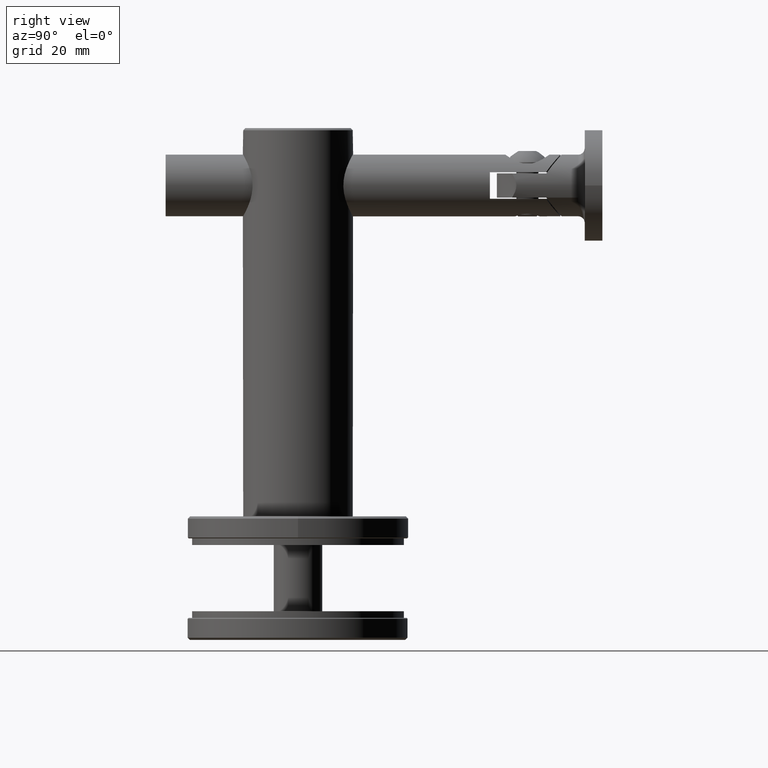
[diagram: clean part render]
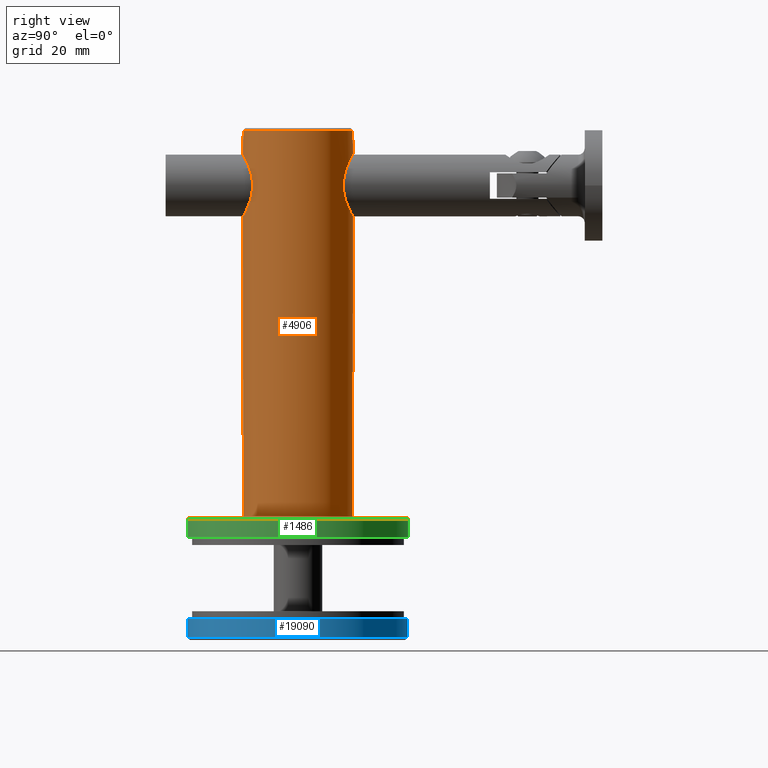
[diagram: same view with three faces highlighted in distinct colors, each labeled with its STEP entity id]
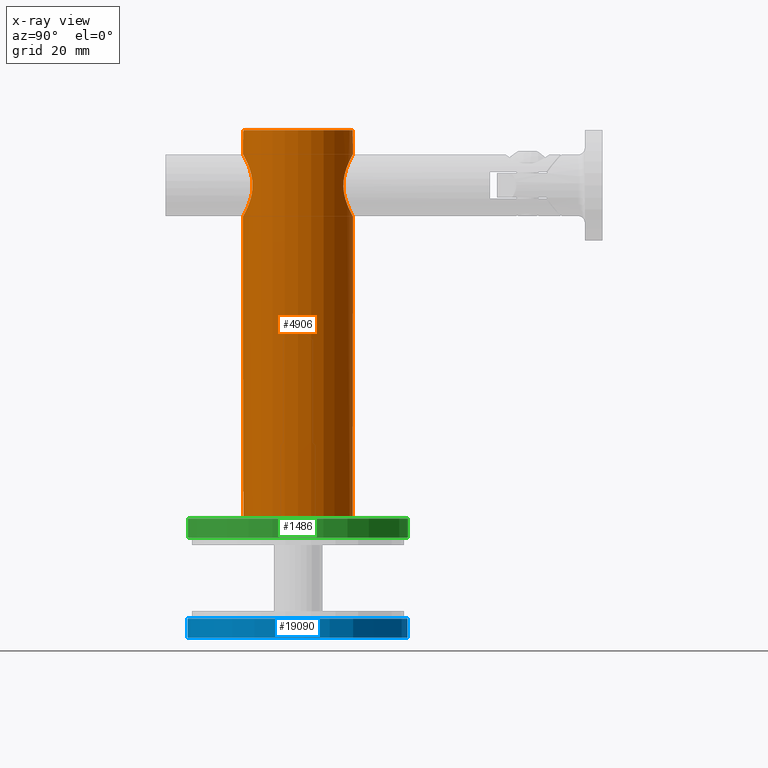
[diagram: x-ray of the same camera — body ghosted, the three highlighted faces saturated]
A machine part, right view with three faces highlighted in distinct colors.
The next image is the same camera in x-ray (body ghosted, the three faces saturated) — at least one of them is partly hidden behind the body in this view.
Their STEP definitions:

[orange] entity #4906 — the highlighted cylindrical surface (bore or boss wall) has radius 12.5 mm, axis along (0, 0, -1).
#10 = CARTESIAN_POINT ( 'NONE',  ( 3.575190798629522600, -11.98464729610662800, 73.84842911643905000 ) ) ;
#169 = CARTESIAN_POINT ( 'NONE',  ( -12.25776322044042400, 2.449810243984445800, 79.19102811394681400 ) ) ;
#293 = DIRECTION ( 'NONE',  ( 0.0000000000000000000, 0.0000000000000000000, 1.000000000000000000 ) ) ;
#314 = CARTESIAN_POINT ( 'NONE',  ( -12.41742158304677800, 1.434448057227614400, 82.08669042954309700 ) ) ;
#379 = DIRECTION ( 'NONE',  ( 0.0000000000000000000, 0.0000000000000000000, -1.000000000000000000 ) ) ;
#386 = CARTESIAN_POINT ( 'NONE',  ( -12.50000000000000000, -3.061616997868382300E-015, 82.50970509121609100 ) ) ;
#444 = DIRECTION ( 'NONE',  ( 1.000000000000000000, 0.0000000000000000000, 0.0000000000000000000 ) ) ;
#938 = CARTESIAN_POINT ( 'NONE',  ( 3.588686174087187400, 11.98054828353597000, 86.14357688401587200 ) ) ;
#942 = CYLINDRICAL_SURFACE ( 'NONE', #3262, 12.50000000000000000 ) ;
#981 = CARTESIAN_POINT ( 'NONE',  ( -5.175251503206549600, 11.37969477022133100, 75.13398084494915000 ) ) ;
#1053 = CARTESIAN_POINT ( 'NONE',  ( -6.639358407684963700, 10.59150144861526100, 82.52634640713076000 ) ) ;
#1110 = CARTESIAN_POINT ( 'NONE',  ( -12.50000000000000000, -0.1698553404806654500, 82.50970459479894700 ) ) ;
#1121 = CARTESIAN_POINT ( 'NONE',  ( 3.605539113816680400, 11.97534002329462400, 73.86663764570010900 ) ) ;
#1240 = CARTESIAN_POINT ( 'NONE',  ( -5.183621414992732200, -11.37587540671378200, 84.85708113046858600 ) ) ;
#1257 = CARTESIAN_POINT ( 'NONE',  ( -12.29563780309713300, -2.254923467992178100, 81.26551305619401000 ) ) ;
#1269 = CARTESIAN_POINT ( 'NONE',  ( 6.868284871124011200, 10.44457344749546500, 78.14038418871585600 ) ) ;
#1306 = CARTESIAN_POINT ( 'NONE',  ( -0.9502310381377858700, -12.47246097537638400, 87.05182805586086700 ) ) ;
#1378 = CARTESIAN_POINT ( 'NONE',  ( 6.143396690811446300, -10.88689843328965900, 83.56675204116636700 ) ) ;
#1394 = CARTESIAN_POINT ( 'NONE',  ( -12.23046837691340200, -2.581790712145600100, 80.00150123447871000 ) ) ;
#1444 = CARTESIAN_POINT ( 'NONE',  ( 6.460839592141696600, -10.70133331722410500, 82.95314374847106400 ) ) ;
#1459 = FACE_OUTER_BOUND ( 'NONE', #16728, .T. ) ;
#1462 = CARTESIAN_POINT ( 'NONE',  ( -12.48300670525219900, 0.6722641213761312300, 77.57132909091399100 ) ) ;
#1501 = CARTESIAN_POINT ( 'NONE',  ( 0.0000000000000000000, -12.49999999999999500, 87.09999999999999400 ) ) ;
#1514 = CARTESIAN_POINT ( 'NONE',  ( 7.101124007438881900, -10.28708120721371700, 80.46248176011640400 ) ) ;
#1594 = CARTESIAN_POINT ( 'NONE',  ( 6.360965238899708200, 10.76253835036409800, 83.18740120694651800 ) ) ;
#1599 = CARTESIAN_POINT ( 'NONE',  ( -12.48292985430368600, -0.6741327792177097500, 77.57170031767452700 ) ) ;
#1655 = CARTESIAN_POINT ( 'NONE',  ( 1.880117477014193300, -12.35990056820642600, 86.85058647304826700 ) ) ;
#1660 = ORIENTED_EDGE ( 'NONE', *, *, #14184, .T. ) ;
#1814 = CARTESIAN_POINT ( 'NONE',  ( -12.29817642840795400, 2.239177090557027800, 81.26002018840563300 ) ) ;
#1935 = CARTESIAN_POINT ( 'NONE',  ( 0.0000000000000000000, 0.0000000000000000000, 5.000000000000004400 ) ) ;
#1953 = CARTESIAN_POINT ( 'NONE',  ( -12.23401056673671600, 2.565178420134417900, 79.67113078207114500 ) ) ;
#2095 = CARTESIAN_POINT ( 'NONE',  ( -12.24777739071416100, 2.498620391668170600, 79.34686524170126600 ) ) ;
#2184 = VERTEX_POINT ( 'NONE', #10904 ) ;
#2612 = CARTESIAN_POINT ( 'NONE',  ( -2.310420913900503900, 12.29250456500398600, 73.27031743588234700 ) ) ;
#2682 = CARTESIAN_POINT ( 'NONE',  ( 0.9736099433189137100, 12.47060447504791500, 72.95144489749591800 ) ) ;
#2729 = CARTESIAN_POINT ( 'NONE',  ( -5.355958186748809500, -11.29981148896228900, 75.31711136074473200 ) ) ;
#2746 = CARTESIAN_POINT ( 'NONE',  ( -12.47308385892750200, -0.8345888587190610800, 82.38059582327395000 ) ) ;
#2756 = CARTESIAN_POINT ( 'NONE',  ( -3.169272846726296500, 12.09956292198342500, 73.62956972911710800 ) ) ;
#2829 = CARTESIAN_POINT ( 'NONE',  ( 2.561768883189979200, 12.23664740688127500, 73.37418452748443100 ) ) ;
#2895 = CARTESIAN_POINT ( 'NONE',  ( 6.144291566700926100, 10.88638881761785400, 76.43483257053731000 ) ) ;
#2936 = CARTESIAN_POINT ( 'NONE',  ( -5.335835450798519700, -11.30507663162559200, 84.68941556034548100 ) ) ;
#2952 = CARTESIAN_POINT ( 'NONE',  ( -12.48982258640161200, -0.5043131568898000500, 82.46135978384009500 ) ) ;
#3003 = CARTESIAN_POINT ( 'NONE',  ( 5.354227270072694700, -11.30066879763864500, 84.68499769419686600 ) ) ;
#3016 = CARTESIAN_POINT ( 'NONE',  ( -12.24769068202353300, -2.499040709645794900, 79.34873603921143100 ) ) ;
#3070 = CARTESIAN_POINT ( 'NONE',  ( 7.054202409483235800, -10.31991815754176800, 80.93325709459465100 ) ) ;
#3085 = CARTESIAN_POINT ( 'NONE',  ( -12.31433411284287900, -2.146433170931300300, 78.60532221454907600 ) ) ;
#3140 = CARTESIAN_POINT ( 'NONE',  ( 7.001530568193297600, -10.35528030401141400, 78.79837147415904000 ) ) ;
#3213 = CARTESIAN_POINT ( 'NONE',  ( 6.856596184691691900, -10.45197745669437200, 81.85805003137291200 ) ) ;
#3231 = CARTESIAN_POINT ( 'NONE',  ( -12.47321102047029800, 0.8329561184921378000, 77.61876034139868400 ) ) ;
#3262 = AXIS2_PLACEMENT_3D ( 'NONE', #19716, #379, #18086 ) ;
#3286 = CARTESIAN_POINT ( 'NONE',  ( 1.853286471380416900, -12.37060092623069200, 73.12994769052775700 ) ) ;
#3305 = CARTESIAN_POINT ( 'NONE',  ( -12.34833964361937600, -1.944999238366209800, 78.34145907401415300 ) ) ;
#3329 = CARTESIAN_POINT ( 'NONE',  ( 6.860853880118836100, 10.44947904693423300, 81.88678518319302700 ) ) ;
#3443 = CARTESIAN_POINT ( 'NONE',  ( -12.38358244671581500, 1.706301180119997400, 81.89062154024748000 ) ) ;
#3722 = CARTESIAN_POINT ( 'NONE',  ( -12.24537138849704100, 2.513600284225936000, 80.65991892068322500 ) ) ;
#3835 = EDGE_LOOP ( 'NONE', ( #13930 ) ) ;
#4230 = CARTESIAN_POINT ( 'NONE',  ( -7.101124007438878400, 10.28708120721371300, 80.46248176011639000 ) ) ;
#4276 = CARTESIAN_POINT ( 'NONE',  ( -4.360704997454967600, -11.72147315400054200, 74.37840787716005800 ) ) ;
#4294 = CARTESIAN_POINT ( 'NONE',  ( -6.361636014312697500, 10.76083024765457300, 83.16111218485477300 ) ) ;
#4327 = CARTESIAN_POINT ( 'NONE',  ( 0.4800627823512708700, 12.50000000000000900, 87.09999999999998000 ) ) ;
#4340 = CARTESIAN_POINT ( 'NONE',  ( -2.339435591207807100, -12.28124712014009600, 73.29235815591162900 ) ) ;
#4356 = CARTESIAN_POINT ( 'NONE',  ( 7.099032266065081300, 10.28852478386591500, 80.49446630777879400 ) ) ;
#4357 = CARTESIAN_POINT ( 'NONE',  ( -12.40109778863534400, -1.575730510538300200, 81.99489648532240000 ) ) ;
#4370 = CARTESIAN_POINT ( 'NONE',  ( -7.054202409483233200, 10.31991815754175500, 80.93325709459463700 ) ) ;
#4416 = CARTESIAN_POINT ( 'NONE',  ( -7.099032266065081300, -10.28852478386591500, 80.49446630777879400 ) ) ;
#4446 = CARTESIAN_POINT ( 'NONE',  ( -5.641618946878540300, 11.15821024869227400, 84.33490563956949900 ) ) ;
#4579 = CARTESIAN_POINT ( 'NONE',  ( -12.46072052156760500, -0.9901737642373450400, 82.31779229075020500 ) ) ;
#4631 = CARTESIAN_POINT ( 'NONE',  ( 4.350185171942295700, -11.72014306462431100, 85.61590526619762900 ) ) ;
#4646 = CARTESIAN_POINT ( 'NONE',  ( -12.25771000552910000, -2.450085953040250800, 79.19168423599231200 ) ) ;
#4655 = CARTESIAN_POINT ( 'NONE',  ( -1.652301775859467400, 12.39249494266610100, 86.90908524717156100 ) ) ;
#4696 = CARTESIAN_POINT ( 'NONE',  ( 2.329605151280716800, -12.28311538749230200, 86.71105927489931300 ) ) ;
#4713 = CARTESIAN_POINT ( 'NONE',  ( -12.46074660338095600, -0.9898454860886062300, 77.68207521481852500 ) ) ;
#4853 = ORIENTED_EDGE ( 'NONE', *, *, #7002, .T. ) ;
#4855 = CARTESIAN_POINT ( 'NONE',  ( -12.40093318555858000, -1.576962253938744700, 78.00609003087140500 ) ) ;
#4906 = ADVANCED_FACE ( 'NONE', ( #20529, #14453, #9082, #5754, #1459 ), #942, .T. ) ;
#4911 = CARTESIAN_POINT ( 'NONE',  ( 5.756534759608706900, -11.09653907833739300, 75.83776719106902000 ) ) ;
#4926 = CARTESIAN_POINT ( 'NONE',  ( -12.50000000000000000, -0.1700820020573731400, 77.49029503976389300 ) ) ;
#5064 = CARTESIAN_POINT ( 'NONE',  ( -12.24089397872543800, 2.531899405901294000, 79.50899801188620600 ) ) ;
#5206 = CARTESIAN_POINT ( 'NONE',  ( -12.46072599656021800, 0.9901048624506362300, 82.31782010406990900 ) ) ;
#5221 = VERTEX_POINT ( 'NONE', #9394 ) ;
#5275 = CARTESIAN_POINT ( 'NONE',  ( -12.23048294247052500, 2.581721712141908500, 80.32833862261412600 ) ) ;
#5342 = EDGE_LOOP ( 'NONE', ( #4853 ) ) ;
#5754 = FACE_BOUND ( 'NONE', #9478, .T. ) ;
#5780 = CARTESIAN_POINT ( 'NONE',  ( 7.049804425350002300, 10.32294463227303900, 80.96515897974055100 ) ) ;
#5795 = CARTESIAN_POINT ( 'NONE',  ( 1.889983813216502100, 12.35839596780823300, 73.15212593721565800 ) ) ;
#5867 = CARTESIAN_POINT ( 'NONE',  ( -6.915009424120472500, 10.41324950567328100, 81.62736897290307100 ) ) ;
#5912 = CARTESIAN_POINT ( 'NONE',  ( -3.203955867126916600, -12.09038730092472300, 73.64696696464361000 ) ) ;
#5939 = CARTESIAN_POINT ( 'NONE',  ( 6.025128862940238000, 10.95302243981158900, 76.23699854062239500 ) ) ;
#5970 = CARTESIAN_POINT ( 'NONE',  ( -12.50000000000000000, -3.061616997868382300E-015, 82.50970509121609100 ) ) ;
#5989 = CARTESIAN_POINT ( 'NONE',  ( -1.662763347459026900, -12.39107304167199400, 73.09346473338199200 ) ) ;
#6001 = CARTESIAN_POINT ( 'NONE',  ( -12.33086616637966400, -2.063339094937965500, 81.54347580391274200 ) ) ;
#6014 = CARTESIAN_POINT ( 'NONE',  ( 3.203955867126915700, 12.09038730092472500, 73.64696696464356800 ) ) ;
#6062 = CARTESIAN_POINT ( 'NONE',  ( -3.523657060577889400E-016, -12.49999999999999300, 87.10000000000000900 ) ) ;
#6075 = CARTESIAN_POINT ( 'NONE',  ( -12.24087703115415400, -2.531981340405705000, 79.50939742000596800 ) ) ;
#6089 = CARTESIAN_POINT ( 'NONE',  ( 4.716523181865117200, 11.58129685567271500, 74.67363696498284800 ) ) ;
#6133 = CARTESIAN_POINT ( 'NONE',  ( -6.868284871124011200, -10.44457344749546500, 78.14038418871585600 ) ) ;
#6207 = CARTESIAN_POINT ( 'NONE',  ( -6.718937078870830200, -10.54276979942761200, 82.34036103084744700 ) ) ;
#6225 = CARTESIAN_POINT ( 'NONE',  ( -12.27048429038587300, -2.384368947833684700, 80.96252044110579500 ) ) ;
#6251 = VERTEX_POINT ( 'NONE', #10981 ) ;
#6274 = CARTESIAN_POINT ( 'NONE',  ( 0.9563567616744069700, -12.46562845003936800, 87.03933869854878900 ) ) ;
#6361 = CARTESIAN_POINT ( 'NONE',  ( -12.36584555837984900, 1.826434676164832900, 78.22618026212101900 ) ) ;
#6502 = CARTESIAN_POINT ( 'NONE',  ( 7.100939746325477300, 10.28720837068595800, 79.53372672903482500 ) ) ;
#6503 = CARTESIAN_POINT ( 'NONE',  ( -12.29805507851957800, -2.239827864232924300, 78.74114934669363200 ) ) ;
#6559 = CARTESIAN_POINT ( 'NONE',  ( 4.342869847070072200, -11.72830940716055200, 74.36410654168391000 ) ) ;
#6576 = CARTESIAN_POINT ( 'NONE',  ( -12.34819437726394000, 1.945941703955530900, 78.34245214326334400 ) ) ;
#6625 = EDGE_LOOP ( 'NONE', ( #1660 ) ) ;
#6712 = CARTESIAN_POINT ( 'NONE',  ( -12.27046648723404600, 2.384460564921596400, 80.96230595464940900 ) ) ;
#6861 = CARTESIAN_POINT ( 'NONE',  ( -12.31451094670359400, 2.145418407564679600, 81.39615240240594600 ) ) ;
#6926 = CARTESIAN_POINT ( 'NONE',  ( -12.34831222666942600, 1.945189729711045400, 81.65835860730116700 ) ) ;
#7002 = EDGE_CURVE ( 'NONE', #6251, #6251, #7499, .T. ) ;
#7440 = CARTESIAN_POINT ( 'NONE',  ( -5.354227270072692900, 11.30066879763865200, 84.68499769419686600 ) ) ;
#7499 = CIRCLE ( 'NONE', #10501, 12.50000000000000000 ) ;
#7511 = CARTESIAN_POINT ( 'NONE',  ( -4.703235346696010000, 11.58298069406303900, 85.32372804176566200 ) ) ;
#7553 = CARTESIAN_POINT ( 'NONE',  ( -6.460840631977733400, -10.70133156741373000, 77.04687974980271300 ) ) ;
#7613 = CARTESIAN_POINT ( 'NONE',  ( 4.704088486941905100, 11.58634715858313200, 85.33724871396501000 ) ) ;
#7638 = CARTESIAN_POINT ( 'NONE',  ( -12.23403564471512400, -2.565056403315160200, 80.32929715547818700 ) ) ;
#7651 = CARTESIAN_POINT ( 'NONE',  ( -6.356607340930143100, 10.76513610372195600, 76.80371625946746400 ) ) ;
#7698 = CARTESIAN_POINT ( 'NONE',  ( -1.872139394921788600, -12.36771263791769500, 86.86486067165593300 ) ) ;
#7713 = CARTESIAN_POINT ( 'NONE',  ( -12.23049726165456400, -2.581653879244425900, 80.16633843205114800 ) ) ;
#7724 = CARTESIAN_POINT ( 'NONE',  ( -5.328153462786819000, 11.30871037991073000, 75.30182161819441000 ) ) ;
#7768 = CARTESIAN_POINT ( 'NONE',  ( -6.361835953135453400, -10.76070739544479300, 76.83933852459222200 ) ) ;
#7851 = CARTESIAN_POINT ( 'NONE',  ( -12.50000000000000000, -3.061616997868382300E-015, 82.50970509121609100 ) ) ;
#7907 = CARTESIAN_POINT ( 'NONE',  ( 7.086570340510783200, -10.29715497009005700, 79.50324592782914100 ) ) ;
#7924 = CARTESIAN_POINT ( 'NONE',  ( -12.50000000000000000, -3.061616997868382300E-015, 77.49029490878881200 ) ) ;
#7977 = CARTESIAN_POINT ( 'NONE',  ( 5.328153462786819000, -11.30871037991072600, 75.30182161819438100 ) ) ;
#8140 = CARTESIAN_POINT ( 'NONE',  ( -12.40114792061166900, 1.587420620583437100, 77.99363649983639800 ) ) ;
#8194 = CARTESIAN_POINT ( 'NONE',  ( 6.859185124894938000, -10.45057995091122300, 78.10713310867888000 ) ) ;
#8526 = B_SPLINE_CURVE_WITH_KNOTS ( 'NONE', 3,
 ( #7851, #1110, #12714, #2952, #10861, #2746, #4579, #15974, #20730, #15838, #4357, #9287, #15761, #6001, #1257, #6225, #12642, #20661, #11147, #7638, #7713, #1394, #19099, #12782, #6075, #3016, #4646, #14765, #19370, #6503, #3085, #9641, #3305, #9714, #12853, #4855, #9568, #21077, #20927, #4713, #11359, #1599, #14694, #16398, #4926, #7924, #14563, #17886, #12992, #1462, #3231, #14627, #17958, #8140, #6361, #6576, #19302, #19584, #11217, #16609, #19872, #169, #2095, #5064, #1953, #11775, #19799, #5275, #3722, #6712, #15125, #1814, #6861, #13205, #6926, #14977, #3443, #10142, #314, #19664, #9999, #5206, #16470, #16678, #386 ),
 .UNSPECIFIED., .T., .F.,
 ( 4, 3, 3, 3, 3, 3, 3, 3, 3, 3, 3, 3, 3, 3, 3, 3, 3, 3, 3, 3, 3, 3, 3, 3, 3, 3, 3, 3, 4 ),
 ( 0.0000000000000000000, 0.03571428571428571200, 0.07142857142857142500, 0.1071428571428571400, 0.1428571428571428500, 0.1785714285714285800, 0.2142857142857142700, 0.2500000000000000000, 0.2857142857142857000, 0.3214285714285714500, 0.3571428571428571500, 0.3928571428571428500, 0.4285714285714285500, 0.4642857142857143000, 0.5000000000000000000, 0.5357142857142857000, 0.5714285714285714000, 0.6071428571428571000, 0.6428571428571429000, 0.6785714285714286000, 0.7142857142857143000, 0.7500000000000000000, 0.7857142857142857000, 0.8214285714285714000, 0.8571428571428571000, 0.8928571428571429000, 0.9285714285714286000, 0.9642857142857143000, 1.000000000000000000 ),
 .UNSPECIFIED. ) ;
#8628 = AXIS2_PLACEMENT_3D ( 'NONE', #1935, #293, #444 ) ;
#9040 = CARTESIAN_POINT ( 'NONE',  ( 1.626303258728256700E-016, 12.50000000000000900, 87.09999999999999400 ) ) ;
#9082 = FACE_BOUND ( 'NONE', #3835, .T. ) ;
#9083 = CARTESIAN_POINT ( 'NONE',  ( -7.086570340510785800, 10.29715497009006100, 79.50324592782914100 ) ) ;
#9148 = CARTESIAN_POINT ( 'NONE',  ( -4.167489591241087000, 11.78650720189665800, 85.75274438239226500 ) ) ;
#9194 = CARTESIAN_POINT ( 'NONE',  ( -2.328163915045303100, -12.28911430792146800, 86.72350286509373500 ) ) ;
#9225 = CARTESIAN_POINT ( 'NONE',  ( -6.143396690811448100, 10.88689843328966600, 83.56675204116639600 ) ) ;
#9268 = CARTESIAN_POINT ( 'NONE',  ( -7.049804425350002300, -10.32294463227304100, 80.96515897974057900 ) ) ;
#9287 = CARTESIAN_POINT ( 'NONE',  ( -12.38346383625171800, -1.707111763978115300, 81.88983859998589300 ) ) ;
#9299 = CARTESIAN_POINT ( 'NONE',  ( 6.361835953135452500, 10.76070739544479300, 76.83933852459222200 ) ) ;
#9338 = CARTESIAN_POINT ( 'NONE',  ( -3.588686174087189200, -11.98054828353597200, 86.14357688401588600 ) ) ;
#9366 = CARTESIAN_POINT ( 'NONE',  ( -7.037625937007599800, 10.33066797645802700, 79.03146245814458800 ) ) ;
#9394 = CARTESIAN_POINT ( 'NONE',  ( 0.0000000000000000000, 12.50000000000000900, 87.09999999999999400 ) ) ;
#9410 = CARTESIAN_POINT ( 'NONE',  ( -6.025128862940238000, -10.95302243981158300, 76.23699854062238000 ) ) ;
#9478 = EDGE_LOOP ( 'NONE', ( #17160 ) ) ;
#9481 = CARTESIAN_POINT ( 'NONE',  ( -4.716523181865119900, -11.58129685567271300, 74.67363696498289000 ) ) ;
#9553 = CARTESIAN_POINT ( 'NONE',  ( 0.4817035191452519500, -12.49297693224775000, 87.08765612089989400 ) ) ;
#9568 = CARTESIAN_POINT ( 'NONE',  ( -12.41716814065016700, -1.436640305303482000, 77.91473517731044800 ) ) ;
#9641 = CARTESIAN_POINT ( 'NONE',  ( -12.33061314716617900, -2.053038477629675700, 78.46949508240453500 ) ) ;
#9697 = CARTESIAN_POINT ( 'NONE',  ( 6.718676569906835800, -10.54116355741437700, 82.30751951410998400 ) ) ;
#9714 = CARTESIAN_POINT ( 'NONE',  ( -12.36593672880062800, -1.825817301730822800, 78.22557978073224700 ) ) ;
#9744 = DIRECTION ( 'NONE',  ( -0.0000000000000000000, -0.0000000000000000000, -1.000000000000000000 ) ) ;
#9768 = CARTESIAN_POINT ( 'NONE',  ( 3.600675860934234000, -11.97681173761797200, 86.13622710087233300 ) ) ;
#9975 = CARTESIAN_POINT ( 'NONE',  ( 6.144214611907544000, 10.88952956567640500, 83.58695593317942500 ) ) ;
#9999 = CARTESIAN_POINT ( 'NONE',  ( -12.44824318700079900, 1.147204252107365500, 82.25440359961696400 ) ) ;
#10142 = CARTESIAN_POINT ( 'NONE',  ( -12.40127992458766700, 1.574179696255175700, 81.99592039492698300 ) ) ;
#10501 = AXIS2_PLACEMENT_3D ( 'NONE', #21032, #9744, #16283 ) ;
#10695 = CARTESIAN_POINT ( 'NONE',  ( 1.872139394921787500, 12.36771263791769100, 86.86486067165591900 ) ) ;
#10779 = CARTESIAN_POINT ( 'NONE',  ( -3.605539113816680800, -11.97534002329462800, 73.86663764570012300 ) ) ;
#10794 = ORIENTED_EDGE ( 'NONE', *, *, #16099, .T. ) ;
#10805 = CARTESIAN_POINT ( 'NONE',  ( -3.600675860934234000, 11.97681173761797200, 86.13622710087231800 ) ) ;
#10848 = CARTESIAN_POINT ( 'NONE',  ( -6.360965238899706400, -10.76253835036409600, 83.18740120694651800 ) ) ;
#10861 = CARTESIAN_POINT ( 'NONE',  ( -12.48312508354058000, -0.6701835518287474500, 82.42924852016827200 ) ) ;
#10904 = CARTESIAN_POINT ( 'NONE',  ( 12.50000000000000000, 0.0000000000000000000, 5.000000000000004400 ) ) ;
#10910 = CARTESIAN_POINT ( 'NONE',  ( 5.625106057332099700, 11.16396342920788200, 84.33819548883796800 ) ) ;
#10952 = CARTESIAN_POINT ( 'NONE',  ( -6.023856308707189900, 10.95372243787466000, 83.76503293258986100 ) ) ;
#10981 = CARTESIAN_POINT ( 'NONE',  ( -12.50000000000000000, 0.0000000000000000000, 92.49999999999992900 ) ) ;
#11024 = CARTESIAN_POINT ( 'NONE',  ( -7.099407664463041300, 10.28826570890215400, 79.74334127595248800 ) ) ;
#11131 = CARTESIAN_POINT ( 'NONE',  ( 6.361636014312694900, -10.76083024765457300, 83.16111218485477300 ) ) ;
#11147 = CARTESIAN_POINT ( 'NONE',  ( -12.24088225871738300, -2.531956067592420600, 80.49072581404146800 ) ) ;
#11202 = CARTESIAN_POINT ( 'NONE',  ( 5.618916498746309600, -11.16709125779064800, 75.65375140950391100 ) ) ;
#11217 = CARTESIAN_POINT ( 'NONE',  ( -12.29802319216774200, 2.240013489027532900, 78.74139612465984300 ) ) ;
#11344 = CARTESIAN_POINT ( 'NONE',  ( 2.552512006404772400, -12.23860169328429000, 86.62942539281218000 ) ) ;
#11359 = CARTESIAN_POINT ( 'NONE',  ( -12.47310918696619600, -0.8342181446663503600, 77.61927697057785700 ) ) ;
#11415 = CARTESIAN_POINT ( 'NONE',  ( 7.099407664463043100, -10.28826570890215900, 79.74334127595248800 ) ) ;
#11775 = CARTESIAN_POINT ( 'NONE',  ( -12.23046101903848800, 2.581825567894134200, 79.83740140945408800 ) ) ;
#11841 = EDGE_CURVE ( 'NONE', #5221, #5221, #18557, .T. ) ;
#12186 = CARTESIAN_POINT ( 'NONE',  ( 5.762524363847195900, 11.09342687341459800, 84.15394023452492400 ) ) ;
#12366 = CARTESIAN_POINT ( 'NONE',  ( 4.360704997454968500, 11.72147315400053800, 74.37840787716004300 ) ) ;
#12437 = CARTESIAN_POINT ( 'NONE',  ( -3.198048903789800800, 12.09203204625984400, 86.35616846345202200 ) ) ;
#12478 = CARTESIAN_POINT ( 'NONE',  ( -5.642930842882246400, -11.15754655068283600, 75.66678379310434400 ) ) ;
#12509 = CARTESIAN_POINT ( 'NONE',  ( -1.853286471380417800, 12.37060092623068500, 73.12994769052774300 ) ) ;
#12581 = CARTESIAN_POINT ( 'NONE',  ( -0.9286070184467031300, 12.47413832801099100, 72.94521591505606800 ) ) ;
#12628 = CARTESIAN_POINT ( 'NONE',  ( -7.100939746325477300, -10.28720837068595800, 79.53372672903482500 ) ) ;
#12642 = CARTESIAN_POINT ( 'NONE',  ( -12.25790753403024300, -2.449091687754438000, 80.81102413356170200 ) ) ;
#12657 = CARTESIAN_POINT ( 'NONE',  ( -6.856596184691688300, 10.45197745669436900, 81.85805003137291200 ) ) ;
#12700 = CARTESIAN_POINT ( 'NONE',  ( -4.352464271525047200, -11.72468594015717100, 85.62834435256026200 ) ) ;
#12714 = CARTESIAN_POINT ( 'NONE',  ( -12.49652008926264600, -0.3384427619508525400, 82.49347104751193200 ) ) ;
#12766 = CARTESIAN_POINT ( 'NONE',  ( 6.023856308707191700, -10.95372243787465800, 83.76503293258987500 ) ) ;
#12782 = CARTESIAN_POINT ( 'NONE',  ( -12.23406338028477500, -2.564921971165615000, 79.67005880080050400 ) ) ;
#12794 = CARTESIAN_POINT ( 'NONE',  ( -1.190421084666685800, 12.44535775715966800, 87.00346041270837800 ) ) ;
#12839 = CARTESIAN_POINT ( 'NONE',  ( 4.872955847900103200, -11.51238539737940400, 85.16875609484240800 ) ) ;
#12853 = CARTESIAN_POINT ( 'NONE',  ( -12.38353381398188100, -1.706635365095435800, 78.10970048745034000 ) ) ;
#12864 = CARTESIAN_POINT ( 'NONE',  ( -0.4817035191452535600, 12.49297693224775000, 87.08765612089992200 ) ) ;
#12905 = CARTESIAN_POINT ( 'NONE',  ( 0.2400313911756330200, -12.49999999999999300, 87.10000000000000900 ) ) ;
#12979 = CARTESIAN_POINT ( 'NONE',  ( -3.523657060577889400E-016, -12.49999999999999300, 87.10000000000000900 ) ) ;
#12992 = CARTESIAN_POINT ( 'NONE',  ( -12.48971849393115700, 0.5068845453888349800, 77.53913938316971200 ) ) ;
#13004 = CARTESIAN_POINT ( 'NONE',  ( -2.329605151280716800, 12.28311538749230200, 86.71105927489931300 ) ) ;
#13205 = CARTESIAN_POINT ( 'NONE',  ( -12.33084546499923600, 2.051659724572331400, 81.53228461640625800 ) ) ;
#13930 = ORIENTED_EDGE ( 'NONE', *, *, #20731, .F. ) ;
#14009 = CARTESIAN_POINT ( 'NONE',  ( -4.693911986042607500, 11.59050969572359500, 74.65372349926244100 ) ) ;
#14050 = CARTESIAN_POINT ( 'NONE',  ( -6.860853880118836100, -10.44947904693423100, 81.88678518319302700 ) ) ;
#14081 = CARTESIAN_POINT ( 'NONE',  ( -2.552512006404772400, 12.23860169328429000, 86.62942539281218000 ) ) ;
#14127 = CARTESIAN_POINT ( 'NONE',  ( -2.561768883189977400, -12.23664740688127700, 73.37418452748443100 ) ) ;
#14155 = CARTESIAN_POINT ( 'NONE',  ( -4.342869847070072200, 11.72830940716054800, 74.36410654168396700 ) ) ;
#14184 = EDGE_CURVE ( 'NONE', #16954, #16954, #8526, .T. ) ;
#14197 = CARTESIAN_POINT ( 'NONE',  ( -4.704088486941909500, -11.58634715858313100, 85.33724871396499600 ) ) ;
#14229 = CARTESIAN_POINT ( 'NONE',  ( 2.339435591207806600, 12.28124712014009400, 73.29235815591164300 ) ) ;
#14297 = CARTESIAN_POINT ( 'NONE',  ( -6.460839592141698300, 10.70133331722410100, 82.95314374847103500 ) ) ;
#14411 = CARTESIAN_POINT ( 'NONE',  ( -0.5042569077676458700, -12.49904858744115200, 72.90167502860092000 ) ) ;
#14437 = CARTESIAN_POINT ( 'NONE',  ( 1.626303258728256700E-016, 12.50000000000000900, 87.09999999999999400 ) ) ;
#14453 = FACE_BOUND ( 'NONE', #6625, .T. ) ;
#14482 = CARTESIAN_POINT ( 'NONE',  ( 3.198048903789800800, -12.09203204625984400, 86.35616846345202200 ) ) ;
#14547 = CARTESIAN_POINT ( 'NONE',  ( 4.693911986042605700, -11.59050969572359200, 74.65372349926248300 ) ) ;
#14563 = CARTESIAN_POINT ( 'NONE',  ( -12.50000000000000000, 0.1700820020573670900, 77.49029477781373000 ) ) ;
#14611 = CARTESIAN_POINT ( 'NONE',  ( 1.652301775859467600, -12.39249494266610600, 86.90908524717154600 ) ) ;
#14627 = CARTESIAN_POINT ( 'NONE',  ( -12.46073668931870800, 0.9899702821128711900, 77.68212557694641900 ) ) ;
#14678 = CARTESIAN_POINT ( 'NONE',  ( 0.4559300718457330300, -12.50090470285381400, 72.89840720695660500 ) ) ;
#14694 = CARTESIAN_POINT ( 'NONE',  ( -12.48971542772271600, -0.5069600916296646000, 77.53915408839603200 ) ) ;
#14765 = CARTESIAN_POINT ( 'NONE',  ( -12.27033213451113100, -2.385151841871611600, 79.03931421654246500 ) ) ;
#14977 = CARTESIAN_POINT ( 'NONE',  ( -12.36594733669262100, 1.825745454915521400, 81.77449007377433100 ) ) ;
#15125 = CARTESIAN_POINT ( 'NONE',  ( -12.28301403660254800, 2.319890705269426900, 81.11349947163252200 ) ) ;
#15400 = VERTEX_POINT ( 'NONE', #1501 ) ;
#15556 = CARTESIAN_POINT ( 'NONE',  ( 6.728327433932026500, 10.53676638689296600, 77.68631603766708300 ) ) ;
#15622 = CARTESIAN_POINT ( 'NONE',  ( -6.716677798686967000, 10.54423309525403600, 77.65288986509251900 ) ) ;
#15696 = CARTESIAN_POINT ( 'NONE',  ( 5.642930842882249100, 11.15754655068284000, 75.66678379310440100 ) ) ;
#15729 = CARTESIAN_POINT ( 'NONE',  ( 4.352464271525046300, 11.72468594015717100, 85.62834435256026200 ) ) ;
#15742 = CARTESIAN_POINT ( 'NONE',  ( -1.889983813216502100, -12.35839596780823000, 73.15212593721565800 ) ) ;
#15754 = B_SPLINE_CURVE_WITH_KNOTS ( 'NONE', 3,
 ( #6062, #15822, #1306, #7698, #9194, #15891, #9338, #12700, #14197, #1240, #2936, #20646, #15959, #17312, #10848, #6207, #14050, #9268, #4416, #12628, #19219, #6133, #17524, #7553, #7768, #19150, #9410, #12478, #2729, #9481, #4276, #10779, #5912, #14127, #4340, #15742, #5989, #17378, #14411, #14678, #19285, #3286, #19428, #16309, #10, #6559, #14547, #17726, #7977, #11202, #4911, #17945, #19354, #17665, #8194, #3140, #20985, #7907, #11415, #1514, #3070, #19567, #3213, #9697, #20851, #1444, #11131, #1378, #12766, #21059, #3003, #12839, #20911, #4631, #16029, #9768, #14482, #11344, #4696, #1655, #14611, #17800, #6274, #9553, #12905, #12979 ),
 .UNSPECIFIED., .T., .F.,
 ( 4, 2, 2, 2, 2, 2, 2, 2, 2, 2, 2, 2, 2, 2, 2, 2, 2, 2, 2, 2, 2, 2, 2, 2, 2, 2, 2, 2, 2, 2, 2, 2, 2, 2, 2, 2, 2, 2, 2, 2, 2, 2, 4 ),
 ( 0.0000000000000000000, 0.001417821200762001500, 0.002835642401524003000, 0.004253463602286004800, 0.005671284803048006100, 0.006380195403429006300, 0.007089106003810005700, 0.008506927204572006100, 0.009924748405334006500, 0.01134256960609600700, 0.01276039080685800700, 0.01417821200762000600, 0.01488712260800102400, 0.01559603320838204300, 0.01701385440914407800, 0.01843167560990611700, 0.01984949681066815200, 0.02055840741104917800, 0.02126731801143020400, 0.02268513921219226700, 0.02410296041295432700, 0.02552078161371639300, 0.02693860281447845200, 0.02835642401524051500, 0.02906533461562153100, 0.02977424521600254700, 0.03119206641676461000, 0.03260988761752667300, 0.03331879821790768200, 0.03402770881828869100, 0.03544553001905067400, 0.03615444061943166200, 0.03686335121981265700, 0.03757226182019364500, 0.03828117242057464000, 0.03969899362133665100, 0.04040790422171763900, 0.04111681482209863400, 0.04253463602286063800, 0.04324354662324163300, 0.04395245722362263500, 0.04466136782400363000, 0.04537027842438462500 ),
 .UNSPECIFIED. ) ;
#15761 = CARTESIAN_POINT ( 'NONE',  ( -12.36593127962770000, -1.825854207631398600, 81.77438433462818100 ) ) ;
#15773 = CARTESIAN_POINT ( 'NONE',  ( -6.718676569906834900, 10.54116355741437700, 82.30751951410997000 ) ) ;
#15822 = CARTESIAN_POINT ( 'NONE',  ( -0.4800627823512705300, -12.49999999999999600, 87.09999999999998000 ) ) ;
#15838 = CARTESIAN_POINT ( 'NONE',  ( -12.41739162065920800, -1.434707405425410300, 82.08652194114984000 ) ) ;
#15850 = CARTESIAN_POINT ( 'NONE',  ( 5.355958186748810400, 11.29981148896229300, 75.31711136074470400 ) ) ;
#15891 = CARTESIAN_POINT ( 'NONE',  ( -3.184456486232202000, -12.09553283554605900, 86.36278829441434400 ) ) ;
#15959 = CARTESIAN_POINT ( 'NONE',  ( -5.762524363847187900, -11.09342687341460000, 84.15394023452493900 ) ) ;
#15974 = CARTESIAN_POINT ( 'NONE',  ( -12.44835718420770700, -1.145758669755629200, 82.25498875822646000 ) ) ;
#16029 = CARTESIAN_POINT ( 'NONE',  ( 4.167489591241089600, -11.78650720189666100, 85.75274438239227900 ) ) ;
#16058 = CARTESIAN_POINT ( 'NONE',  ( -1.880117477014193300, 12.35990056820642600, 86.85058647304826700 ) ) ;
#16099 = EDGE_CURVE ( 'NONE', #2184, #2184, #20345, .T. ) ;
#16283 = DIRECTION ( 'NONE',  ( -1.000000000000000000, 0.0000000000000000000, 0.0000000000000000000 ) ) ;
#16309 = CARTESIAN_POINT ( 'NONE',  ( 3.169272846726294300, -12.09956292198341800, 73.62956972911712200 ) ) ;
#16398 = CARTESIAN_POINT ( 'NONE',  ( -12.49650100114174800, -0.3397874040416194500, 77.50660785911752300 ) ) ;
#16466 = CARTESIAN_POINT ( 'NONE',  ( 6.718937078870830200, 10.54276979942761500, 82.34036103084744700 ) ) ;
#16470 = CARTESIAN_POINT ( 'NONE',  ( -12.48569161567905400, 0.6759060831371772600, 82.44465311297575700 ) ) ;
#16609 = CARTESIAN_POINT ( 'NONE',  ( -12.28287413168945400, 2.320631910706028900, 78.88792521150956800 ) ) ;
#16678 = CARTESIAN_POINT ( 'NONE',  ( -12.50000000000000000, 0.3402560415695205000, 82.50970608564425400 ) ) ;
#16728 = EDGE_LOOP ( 'NONE', ( #10794 ) ) ;
#16954 = VERTEX_POINT ( 'NONE', #5970 ) ;
#17160 = ORIENTED_EDGE ( 'NONE', *, *, #11841, .F. ) ;
#17192 = CARTESIAN_POINT ( 'NONE',  ( -5.618916498746308700, 11.16709125779064000, 75.65375140950388300 ) ) ;
#17266 = CARTESIAN_POINT ( 'NONE',  ( -4.872955847900104900, 11.51238539737940100, 85.16875609484242200 ) ) ;
#17312 = CARTESIAN_POINT ( 'NONE',  ( -6.144214611907535200, -10.88952956567641000, 83.58695593317949600 ) ) ;
#17336 = CARTESIAN_POINT ( 'NONE',  ( -3.575190798629518200, 11.98464729610662300, 73.84842911643902100 ) ) ;
#17378 = CARTESIAN_POINT ( 'NONE',  ( -0.9736099433189165900, -12.47060447504791700, 72.95144489749591800 ) ) ;
#17405 = CARTESIAN_POINT ( 'NONE',  ( 0.5042569077676455300, 12.49904858744114800, 72.90167502860092000 ) ) ;
#17524 = CARTESIAN_POINT ( 'NONE',  ( -6.728327433932022900, -10.53676638689296600, 77.68631603766704100 ) ) ;
#17550 = CARTESIAN_POINT ( 'NONE',  ( -0.2400313911756351600, 12.50000000000000900, 87.09999999999999400 ) ) ;
#17665 = CARTESIAN_POINT ( 'NONE',  ( 6.716677798686966100, -10.54423309525403800, 77.65288986509250400 ) ) ;
#17726 = CARTESIAN_POINT ( 'NONE',  ( 5.175251503206552300, -11.37969477022132700, 75.13398084494915000 ) ) ;
#17800 = CARTESIAN_POINT ( 'NONE',  ( 1.190421084666685800, -12.44535775715966400, 87.00346041270835000 ) ) ;
#17886 = CARTESIAN_POINT ( 'NONE',  ( -12.49643028261011300, 0.3415049694015387900, 77.50694967542543200 ) ) ;
#17945 = CARTESIAN_POINT ( 'NONE',  ( 6.138928330866495000, -10.89252251643727800, 76.40402217390261800 ) ) ;
#17958 = CARTESIAN_POINT ( 'NONE',  ( -12.43578802701552600, 1.303998609354338100, 77.80885604804187500 ) ) ;
#18086 = DIRECTION ( 'NONE',  ( -1.000000000000000000, 0.0000000000000000000, 0.0000000000000000000 ) ) ;
#18557 = B_SPLINE_CURVE_WITH_KNOTS ( 'NONE', 3,
 ( #9040, #4327, #20423, #10695, #18723, #20634, #938, #15729, #7613, #18996, #20349, #10910, #12186, #9975, #1594, #16466, #3329, #5780, #4356, #6502, #20530, #1269, #15556, #18831, #9299, #2895, #5939, #15696, #15850, #6089, #12366, #1121, #6014, #2829, #14229, #5795, #18966, #2682, #17405, #20741, #12581, #12509, #2612, #2756, #17336, #14155, #14009, #981, #7724, #17192, #19110, #20598, #7651, #15622, #20457, #19038, #9366, #9083, #11024, #4230, #4370, #5867, #12657, #15773, #1053, #14297, #4294, #9225, #10952, #4446, #7440, #17266, #7511, #18906, #9148, #10805, #12437, #14081, #13004, #16058, #4655, #12794, #20809, #12864, #17550, #14437 ),
 .UNSPECIFIED., .T., .F.,
 ( 4, 2, 2, 2, 2, 2, 2, 2, 2, 2, 2, 2, 2, 2, 2, 2, 2, 2, 2, 2, 2, 2, 2, 2, 2, 2, 2, 2, 2, 2, 2, 2, 2, 2, 2, 2, 2, 2, 2, 2, 2, 2, 4 ),
 ( 0.0000000000000000000, 0.001417821200762001300, 0.002835642401524002600, 0.004253463602286003900, 0.005671284803048006100, 0.006380195403429008900, 0.007089106003810008300, 0.008506927204572009600, 0.009924748405334008300, 0.01134256960609600900, 0.01276039080685800900, 0.01417821200762001000, 0.01488712260800102500, 0.01559603320838204300, 0.01701385440914408200, 0.01843167560990611700, 0.01984949681066815200, 0.02055840741104917800, 0.02126731801143020400, 0.02268513921219226700, 0.02410296041295432700, 0.02552078161371639300, 0.02693860281447845200, 0.02835642401524051200, 0.02906533461562153100, 0.02977424521600254700, 0.03119206641676460600, 0.03260988761752667300, 0.03331879821790768200, 0.03402770881828869100, 0.03544553001905066700, 0.03615444061943166200, 0.03686335121981265700, 0.03757226182019364500, 0.03828117242057463300, 0.03969899362133665100, 0.04040790422171763900, 0.04111681482209863400, 0.04253463602286063800, 0.04324354662324163300, 0.04395245722362262800, 0.04466136782400362300, 0.04537027842438462500 ),
 .UNSPECIFIED. ) ;
#18723 = CARTESIAN_POINT ( 'NONE',  ( 2.328163915045302600, 12.28911430792146800, 86.72350286509372100 ) ) ;
#18831 = CARTESIAN_POINT ( 'NONE',  ( 6.460840631977733400, 10.70133156741372800, 77.04687974980271300 ) ) ;
#18906 = CARTESIAN_POINT ( 'NONE',  ( -4.350185171942293000, 11.72014306462431000, 85.61590526619761500 ) ) ;
#18966 = CARTESIAN_POINT ( 'NONE',  ( 1.662763347459024000, 12.39107304167199600, 73.09346473338197800 ) ) ;
#18996 = CARTESIAN_POINT ( 'NONE',  ( 5.183621414992734000, 11.37587540671378300, 84.85708113046858600 ) ) ;
#19038 = CARTESIAN_POINT ( 'NONE',  ( -7.001530568193298400, 10.35528030401141600, 78.79837147415901200 ) ) ;
#19099 = CARTESIAN_POINT ( 'NONE',  ( -12.23043949217223800, -2.581927545046774200, 79.83666403690625700 ) ) ;
#19110 = CARTESIAN_POINT ( 'NONE',  ( -5.756534759608702400, 11.09653907833739200, 75.83776719106900500 ) ) ;
#19150 = CARTESIAN_POINT ( 'NONE',  ( -6.144291566700927900, -10.88638881761785300, 76.43483257053729600 ) ) ;
#19219 = CARTESIAN_POINT ( 'NONE',  ( -7.053651354597871400, -10.32029331651082200, 79.06324464011741800 ) ) ;
#19285 = CARTESIAN_POINT ( 'NONE',  ( 0.9286070184467023500, -12.47413832801099400, 72.94521591505608200 ) ) ;
#19302 = CARTESIAN_POINT ( 'NONE',  ( -12.33066589463391700, 2.052733168493389400, 78.46907425830478600 ) ) ;
#19354 = CARTESIAN_POINT ( 'NONE',  ( 6.356607340930142200, -10.76513610372195400, 76.80371625946746400 ) ) ;
#19370 = CARTESIAN_POINT ( 'NONE',  ( -12.28295426349316300, -2.320217730702971900, 78.88694419709261800 ) ) ;
#19428 = CARTESIAN_POINT ( 'NONE',  ( 2.310420913900503400, -12.29250456500398400, 73.27031743588233300 ) ) ;
#19567 = CARTESIAN_POINT ( 'NONE',  ( 6.915009424120476900, -10.41324950567328300, 81.62736897290308500 ) ) ;
#19584 = CARTESIAN_POINT ( 'NONE',  ( -12.31434454340082900, 2.146373328760461200, 78.60523519148230800 ) ) ;
#19664 = CARTESIAN_POINT ( 'NONE',  ( -12.43356324150588700, 1.294716418200053200, 82.17746046415922500 ) ) ;
#19716 = CARTESIAN_POINT ( 'NONE',  ( 0.0000000000000000000, 0.0000000000000000000, 93.00000000000000000 ) ) ;
#19799 = CARTESIAN_POINT ( 'NONE',  ( -12.23046832684916700, 2.581790949310058800, 80.00104714717409100 ) ) ;
#19872 = CARTESIAN_POINT ( 'NONE',  ( -12.27031867606493900, 2.385221077345237400, 79.03947666272819100 ) ) ;
#20345 = CIRCLE ( 'NONE', #8628, 12.50000000000000000 ) ;
#20349 = CARTESIAN_POINT ( 'NONE',  ( 5.335835450798510000, 11.30507663162559800, 84.68941556034549500 ) ) ;
#20423 = CARTESIAN_POINT ( 'NONE',  ( 0.9502310381377845300, 12.47246097537638400, 87.05182805586086700 ) ) ;
#20457 = CARTESIAN_POINT ( 'NONE',  ( -6.859185124894941600, 10.45057995091122500, 78.10713310867888000 ) ) ;
#20529 = FACE_OUTER_BOUND ( 'NONE', #5342, .T. ) ;
#20530 = CARTESIAN_POINT ( 'NONE',  ( 7.053651354597871400, 10.32029331651082200, 79.06324464011741800 ) ) ;
#20598 = CARTESIAN_POINT ( 'NONE',  ( -6.138928330866495900, 10.89252251643727700, 76.40402217390263200 ) ) ;
#20634 = CARTESIAN_POINT ( 'NONE',  ( 3.184456486232198900, 12.09553283554605800, 86.36278829441432900 ) ) ;
#20646 = CARTESIAN_POINT ( 'NONE',  ( -5.625106057332109400, -11.16396342920787900, 84.33819548883795400 ) ) ;
#20661 = CARTESIAN_POINT ( 'NONE',  ( -12.24772887271964100, -2.498855731869680700, 80.65215447260474900 ) ) ;
#20730 = CARTESIAN_POINT ( 'NONE',  ( -12.43368545268307200, -1.293684300312520500, 82.17814739697726600 ) ) ;
#20731 = EDGE_CURVE ( 'NONE', #15400, #15400, #15754, .T. ) ;
#20741 = CARTESIAN_POINT ( 'NONE',  ( -0.4559300718457330900, 12.50090470285381800, 72.89840720695659100 ) ) ;
#20809 = CARTESIAN_POINT ( 'NONE',  ( -0.9563567616744034200, 12.46562845003937300, 87.03933869854881800 ) ) ;
#20851 = CARTESIAN_POINT ( 'NONE',  ( 6.639358407684966300, -10.59150144861526900, 82.52634640713077400 ) ) ;
#20911 = CARTESIAN_POINT ( 'NONE',  ( 4.703235346696010800, -11.58298069406304400, 85.32372804176564800 ) ) ;
#20927 = CARTESIAN_POINT ( 'NONE',  ( -12.44838401979571800, -1.145472827510862100, 77.74487345905919300 ) ) ;
#20985 = CARTESIAN_POINT ( 'NONE',  ( 7.037625937007606000, -10.33066797645803400, 79.03146245814461700 ) ) ;
#21032 = CARTESIAN_POINT ( 'NONE',  ( 0.0000000000000000000, 0.0000000000000000000, 92.49999999999992900 ) ) ;
#21059 = CARTESIAN_POINT ( 'NONE',  ( 5.641618946878534000, -11.15821024869228100, 84.33490563956949900 ) ) ;
#21077 = CARTESIAN_POINT ( 'NONE',  ( -12.43340309574175600, -1.296318356668219300, 77.82338032374949000 ) ) ;

[blue] entity #19090 — the highlighted cylindrical surface (bore or boss wall) has radius 25 mm, axis along (-0, 0, -1).
#49 = CARTESIAN_POINT ( 'NONE',  ( -24.96365933151905400, 1.834769709829958000, 1.348011344051604800 ) ) ;
#261 = CARTESIAN_POINT ( 'NONE',  ( -24.95495942693556300, 2.499999999999999600, 1.499999999999999100 ) ) ;
#340 = CARTESIAN_POINT ( 'NONE',  ( -24.95743644530080700, 2.895184109153693600, 1.460138689120589200 ) ) ;
#799 = EDGE_CURVE ( 'NONE', #12902, #12902, #13252, .T. ) ;
#1379 = ORIENTED_EDGE ( 'NONE', *, *, #3326, .T. ) ;
#1693 = CARTESIAN_POINT ( 'NONE',  ( -24.95779639711049900, 2.111682582933336800, 1.452158194344110600 ) ) ;
#1728 = B_SPLINE_CURVE_WITH_KNOTS ( 'NONE', 3,
 ( #261, #9950, #5018, #1693, #19608, #49, #16629, #11584, #10021, #1838, #9877, #13299, #13083, #18049, #11661, #15002, #1907, #1977, #13227, #8296, #3464, #14860, #8161, #3327, #17979, #3530, #16421, #6666, #11451, #14928, #5084, #14719, #16493, #19538, #19821, #6737, #5158, #6810, #16561, #18115, #4948, #13367, #16347, #18185, #8444, #10090, #6597, #340, #11729, #17912 ),
 .UNSPECIFIED., .T., .F.,
 ( 4, 2, 2, 2, 2, 2, 2, 2, 2, 2, 2, 2, 2, 2, 2, 2, 2, 2, 2, 2, 2, 2, 2, 2, 4 ),
 ( 0.0000000000000000000, 0.0002931375252139876500, 0.0005862750504279753100, 0.0008794125756419641000, 0.001172550100855953000, 0.001758825151283929900, 0.002345100201711907300, 0.002638237726925896100, 0.002931375252139884400, 0.003224512777353873700, 0.003517650302567862000, 0.004103925352995837900, 0.004397062878209826200, 0.004690200403423813700, 0.005276475453851788700, 0.005862750504279763700, 0.006155888029493752000, 0.006449025554707739500, 0.006742163079921727000, 0.007035300605135714500, 0.007621575655563689500, 0.007914713180777677900, 0.008207850705991665300, 0.008794125756419642100, 0.009380400806847617000 ),
 .UNSPECIFIED. ) ;
#1838 = CARTESIAN_POINT ( 'NONE',  ( -24.98336912034094600, 1.300902217552167000, 0.9221965665937169600 ) ) ;
#1907 = CARTESIAN_POINT ( 'NONE',  ( -24.99551156729559800, 1.076271019388290100, -0.4823414848162960200 ) ) ;
#1977 = CARTESIAN_POINT ( 'NONE',  ( -24.99134634170768300, 1.151371930215209200, -0.6639727762468844400 ) ) ;
#2360 = ORIENTED_EDGE ( 'NONE', *, *, #16568, .T. ) ;
#2710 = CARTESIAN_POINT ( 'NONE',  ( 0.0000000000000000000, 0.4999999999999831200, 25.00000000000000000 ) ) ;
#2723 = CARTESIAN_POINT ( 'NONE',  ( 0.0000000000000000000, 5.000000000000000000, 0.0000000000000000000 ) ) ;
#2853 = CARTESIAN_POINT ( 'NONE',  ( -24.95495942693556300, 2.500000000000000000, 1.499999999999999600 ) ) ;
#2910 = CARTESIAN_POINT ( 'NONE',  ( 0.0000000000000000000, 4.799999999999990900, 0.0000000000000000000 ) ) ;
#3229 = FACE_OUTER_BOUND ( 'NONE', #9446, .T. ) ;
#3326 = EDGE_CURVE ( 'NONE', #21020, #21020, #1728, .T. ) ;
#3327 = CARTESIAN_POINT ( 'NONE',  ( -24.95947895492115600, 2.016428212892981400, -1.423317819213181900 ) ) ;
#3464 = CARTESIAN_POINT ( 'NONE',  ( -24.98048463871673900, 1.368849891667112600, -0.9901021051446198300 ) ) ;
#3530 = CARTESIAN_POINT ( 'NONE',  ( -24.95555880984478800, 2.302135585148520100, -1.490119014707691000 ) ) ;
#4948 = CARTESIAN_POINT ( 'NONE',  ( -24.99760101654468500, 3.961401732365593500, 0.3912139791242421600 ) ) ;
#5018 = CARTESIAN_POINT ( 'NONE',  ( -24.95554957949472600, 2.303418639247900100, 1.490271655237032800 ) ) ;
#5051 = CIRCLE ( 'NONE', #16138, 25.00000000000000000 ) ;
#5084 = CARTESIAN_POINT ( 'NONE',  ( -24.97157358963035600, 3.421203391268522200, -1.199848114015400300 ) ) ;
#5113 = AXIS2_PLACEMENT_3D ( 'NONE', #7057, #18444, #8696 ) ;
#5158 = CARTESIAN_POINT ( 'NONE',  ( -24.99714769670774900, 3.951812058794312900, -0.3896155053030132500 ) ) ;
#5281 = CYLINDRICAL_SURFACE ( 'NONE', #12747, 25.00000000000000000 ) ;
#6597 = CARTESIAN_POINT ( 'NONE',  ( -24.96575768507296200, 3.256037928068396400, 1.310184003457698100 ) ) ;
#6666 = CARTESIAN_POINT ( 'NONE',  ( -24.95495521292416200, 2.695261810398797300, -1.500070106993404800 ) ) ;
#6737 = CARTESIAN_POINT ( 'NONE',  ( -24.99546001406919200, 3.922827470226998100, -0.4849842379065917300 ) ) ;
#6810 = CARTESIAN_POINT ( 'NONE',  ( -24.99940083598973600, 3.990103164725086000, -0.1978662540944960400 ) ) ;
#7057 = CARTESIAN_POINT ( 'NONE',  ( 0.0000000000000000000, 0.4999999999999831200, 0.0000000000000000000 ) ) ;
#7693 = DIRECTION ( 'NONE',  ( -0.0000000000000000000, -1.000000000000000000, -0.0000000000000000000 ) ) ;
#8161 = CARTESIAN_POINT ( 'NONE',  ( -24.96575209631424000, 1.743834923344436300, -1.310311233237751800 ) ) ;
#8296 = CARTESIAN_POINT ( 'NONE',  ( -24.98340648196891700, 1.306878897937073800, -0.9143373182127113600 ) ) ;
#8444 = CARTESIAN_POINT ( 'NONE',  ( -24.98046469887881600, 3.630659357507107100, 0.9905503220831285400 ) ) ;
#8696 = DIRECTION ( 'NONE',  ( 0.0000000000000000000, 0.0000000000000000000, 1.000000000000000000 ) ) ;
#9446 = EDGE_LOOP ( 'NONE', ( #2360 ) ) ;
#9816 = VERTEX_POINT ( 'NONE', #14325 ) ;
#9877 = CARTESIAN_POINT ( 'NONE',  ( -24.98925249792974400, 1.189152710838828200, 0.7548846248046488000 ) ) ;
#9950 = CARTESIAN_POINT ( 'NONE',  ( -24.95495942693555900, 2.400878900237789700, 1.499999999999999600 ) ) ;
#9968 = EDGE_LOOP ( 'NONE', ( #1379 ) ) ;
#10021 = CARTESIAN_POINT ( 'NONE',  ( -24.97455658330181900, 1.508409230221276600, 1.129742557008798700 ) ) ;
#10090 = CARTESIAN_POINT ( 'NONE',  ( -24.97164757035087100, 3.423189266056673800, 1.198350396264459500 ) ) ;
#10622 = FACE_BOUND ( 'NONE', #9968, .T. ) ;
#10963 = DIRECTION ( 'NONE',  ( 0.0000000000000000000, 0.0000000000000000000, 1.000000000000000000 ) ) ;
#11145 = FACE_OUTER_BOUND ( 'NONE', #13899, .T. ) ;
#11451 = CARTESIAN_POINT ( 'NONE',  ( -24.95739512455913500, 2.892629217940410100, -1.460828771148607200 ) ) ;
#11584 = CARTESIAN_POINT ( 'NONE',  ( -24.97157416320206700, 1.585585392971524500, 1.193085641653804300 ) ) ;
#11661 = CARTESIAN_POINT ( 'NONE',  ( -24.99941339213296100, 1.009686336925851100, -0.1964315904634703100 ) ) ;
#11729 = CARTESIAN_POINT ( 'NONE',  ( -24.95495942693557000, 2.698242199524419700, 1.499999999999998400 ) ) ;
#12747 = AXIS2_PLACEMENT_3D ( 'NONE', #2723, #7693, #15591 ) ;
#12902 = VERTEX_POINT ( 'NONE', #2710 ) ;
#13016 = ORIENTED_EDGE ( 'NONE', *, *, #799, .T. ) ;
#13083 = CARTESIAN_POINT ( 'NONE',  ( -24.99999368694633600, 1.000105217576151800, 0.1965001737541025600 ) ) ;
#13227 = CARTESIAN_POINT ( 'NONE',  ( -24.98882576936013000, 1.198327286781012600, -0.7517970758957395200 ) ) ;
#13252 = CIRCLE ( 'NONE', #5113, 25.00000000000000000 ) ;
#13299 = CARTESIAN_POINT ( 'NONE',  ( -24.99754825602174400, 1.039520961345591800, 0.3939192682755474100 ) ) ;
#13367 = CARTESIAN_POINT ( 'NONE',  ( -24.99134441230504300, 3.848593765631900700, 0.6640637812022393000 ) ) ;
#13899 = EDGE_LOOP ( 'NONE', ( #13016 ) ) ;
#14169 = DIRECTION ( 'NONE',  ( 0.0000000000000000000, -1.000000000000000000, 0.0000000000000000000 ) ) ;
#14325 = CARTESIAN_POINT ( 'NONE',  ( 0.0000000000000000000, 4.799999999999990900, 25.00000000000000000 ) ) ;
#14719 = CARTESIAN_POINT ( 'NONE',  ( -24.98038257970437200, 3.628847139713026000, -0.9926061310305647200 ) ) ;
#14860 = CARTESIAN_POINT ( 'NONE',  ( -24.97156582645983000, 1.578777467225774600, -1.200233323101090700 ) ) ;
#14928 = CARTESIAN_POINT ( 'NONE',  ( -24.96568774851645900, 3.253757955737226000, -1.311498130215551300 ) ) ;
#15002 = CARTESIAN_POINT ( 'NONE',  ( -24.99716120778542100, 1.047955471894446400, -0.3888275613639248200 ) ) ;
#15591 = DIRECTION ( 'NONE',  ( 0.0000000000000000000, 0.0000000000000000000, -1.000000000000000000 ) ) ;
#16138 = AXIS2_PLACEMENT_3D ( 'NONE', #2910, #14169, #10963 ) ;
#16347 = CARTESIAN_POINT ( 'NONE',  ( -24.98887275092948800, 3.802575992214811200, 0.7502602059243880200 ) ) ;
#16421 = CARTESIAN_POINT ( 'NONE',  ( -24.95496154263445700, 2.401562363641519300, -1.499964801877700800 ) ) ;
#16493 = CARTESIAN_POINT ( 'NONE',  ( -24.98336349212566200, 3.692232339669165000, -0.9155337766041729000 ) ) ;
#16561 = CARTESIAN_POINT ( 'NONE',  ( -24.99999402977303500, 3.999900496168235600, -0.1004706401953398000 ) ) ;
#16568 = EDGE_CURVE ( 'NONE', #9816, #9816, #5051, .T. ) ;
#16629 = CARTESIAN_POINT ( 'NONE',  ( -24.96613566754586300, 1.748622561190733300, 1.301936775083927700 ) ) ;
#17912 = CARTESIAN_POINT ( 'NONE',  ( -24.95495942693556300, 2.499999999999999600, 1.499999999999999100 ) ) ;
#17979 = CARTESIAN_POINT ( 'NONE',  ( -24.95782287439013600, 2.109926360191465300, -1.451705052751577100 ) ) ;
#18049 = CARTESIAN_POINT ( 'NONE',  ( -25.00000313709404800, 0.9999477150916520300, -0.09704283434732685600 ) ) ;
#18115 = CARTESIAN_POINT ( 'NONE',  ( -25.00001180604485600, 4.000196767512097300, 0.1964511403229316800 ) ) ;
#18185 = CARTESIAN_POINT ( 'NONE',  ( -24.98344571714367000, 3.693944200878966500, 0.9132862844013306400 ) ) ;
#18444 = DIRECTION ( 'NONE',  ( -0.0000000000000000000, 1.000000000000000000, -0.0000000000000000000 ) ) ;
#19090 = ADVANCED_FACE ( 'NONE', ( #10622, #3229, #11145 ), #5281, .T. ) ;
#19538 = CARTESIAN_POINT ( 'NONE',  ( -24.98880583264214300, 3.801300700670501100, -0.7524868997468168200 ) ) ;
#19608 = CARTESIAN_POINT ( 'NONE',  ( -24.95947942501001600, 2.016412069713230600, 1.423309044562175700 ) ) ;
#19821 = CARTESIAN_POINT ( 'NONE',  ( -24.99128169093220100, 3.847433579299660300, -0.6663861271260884700 ) ) ;
#21020 = VERTEX_POINT ( 'NONE', #2853 ) ;

[green] entity #1486 — the highlighted cylindrical surface (bore or boss wall) has radius 25 mm, axis along (-0, -0, -1).
#748 = FACE_OUTER_BOUND ( 'NONE', #8539, .T. ) ;
#1365 = EDGE_CURVE ( 'NONE', #20780, #20780, #9909, .T. ) ;
#1486 = ADVANCED_FACE ( 'NONE', ( #17801, #748 ), #12980, .T. ) ;
#2130 = DIRECTION ( 'NONE',  ( -1.000000000000000000, 0.0000000000000000000, 0.0000000000000000000 ) ) ;
#5583 = CARTESIAN_POINT ( 'NONE',  ( 0.0000000000000000000, 0.0000000000000000000, 4.499999999999971600 ) ) ;
#6130 = ORIENTED_EDGE ( 'NONE', *, *, #1365, .T. ) ;
#6609 = CARTESIAN_POINT ( 'NONE',  ( 0.0000000000000000000, 0.0000000000000000000, 0.1999999999999883800 ) ) ;
#7701 = AXIS2_PLACEMENT_3D ( 'NONE', #6609, #15013, #8309 ) ;
#7757 = VERTEX_POINT ( 'NONE', #19201 ) ;
#7953 = ORIENTED_EDGE ( 'NONE', *, *, #17468, .T. ) ;
#8309 = DIRECTION ( 'NONE',  ( 1.000000000000000000, 0.0000000000000000000, 0.0000000000000000000 ) ) ;
#8539 = EDGE_LOOP ( 'NONE', ( #7953 ) ) ;
#8674 = DIRECTION ( 'NONE',  ( -0.0000000000000000000, -0.0000000000000000000, -1.000000000000000000 ) ) ;
#9909 = CIRCLE ( 'NONE', #7701, 25.00000000000000000 ) ;
#10286 = AXIS2_PLACEMENT_3D ( 'NONE', #5583, #10379, #13863 ) ;
#10379 = DIRECTION ( 'NONE',  ( 0.0000000000000000000, 0.0000000000000000000, -1.000000000000000000 ) ) ;
#12980 = CYLINDRICAL_SURFACE ( 'NONE', #17527, 25.00000000000000000 ) ;
#13290 = EDGE_LOOP ( 'NONE', ( #6130 ) ) ;
#13723 = CIRCLE ( 'NONE', #10286, 25.00000000000000000 ) ;
#13863 = DIRECTION ( 'NONE',  ( 1.000000000000000000, 0.0000000000000000000, 0.0000000000000000000 ) ) ;
#15013 = DIRECTION ( 'NONE',  ( -0.0000000000000000000, -0.0000000000000000000, 1.000000000000000000 ) ) ;
#15349 = CARTESIAN_POINT ( 'NONE',  ( 0.0000000000000000000, 0.0000000000000000000, 5.000000000000000000 ) ) ;
#17436 = CARTESIAN_POINT ( 'NONE',  ( 25.00000000000000000, 0.0000000000000000000, 0.1999999999999883800 ) ) ;
#17468 = EDGE_CURVE ( 'NONE', #7757, #7757, #13723, .T. ) ;
#17527 = AXIS2_PLACEMENT_3D ( 'NONE', #15349, #8674, #2130 ) ;
#17801 = FACE_OUTER_BOUND ( 'NONE', #13290, .T. ) ;
#19201 = CARTESIAN_POINT ( 'NONE',  ( 25.00000000000000000, 0.0000000000000000000, 4.499999999999971600 ) ) ;
#20780 = VERTEX_POINT ( 'NONE', #17436 ) ;